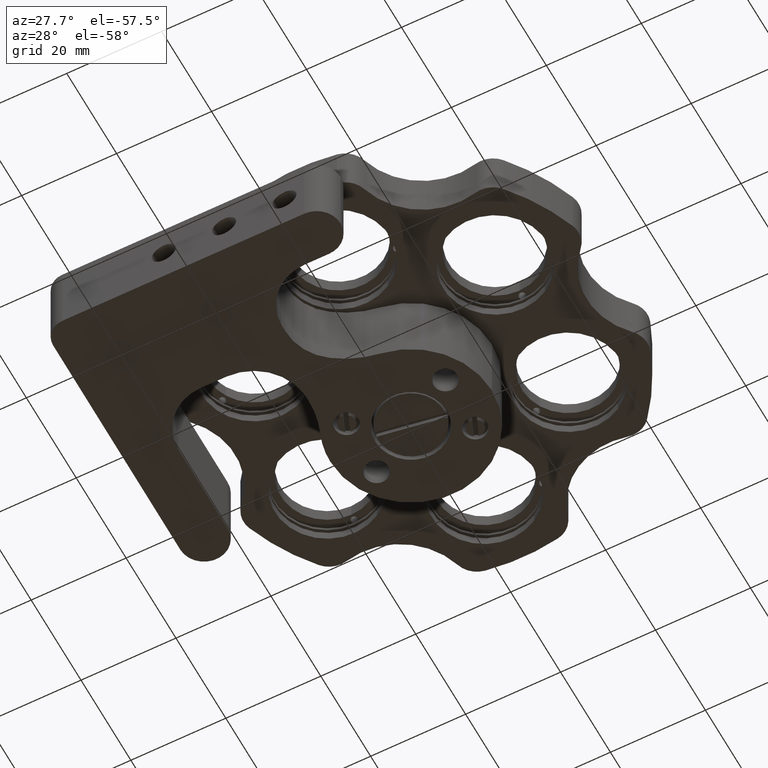
[diagram: clean part render]
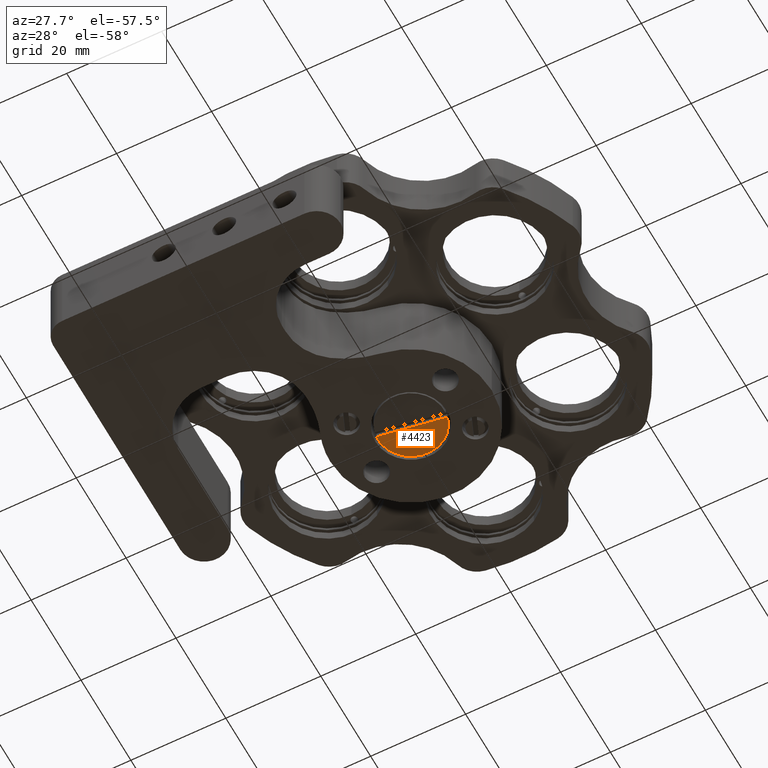
[diagram: same view with one face highlighted and labeled with its STEP entity id]
A machine part, auxiliary view. The second image highlights one B-rep face of the part: STEP entity #4423.
In plain terms, the highlighted planar face has unit normal (0, 0, 1).
Its self-contained STEP definition (entity closure, byte-faithful):
#75 = FACE_OUTER_BOUND ( 'NONE', #2316, .T. ) ;
#404 = DIRECTION ( 'NONE',  ( 1.923004988724427500E-030, 2.449212707644754500E-016, 1.000000000000000000 ) ) ;
#2316 = EDGE_LOOP ( 'NONE', ( #4107, #13499, #11055 ) ) ;
#2749 = CARTESIAN_POINT ( 'NONE',  ( -6.968326962410020400, -0.6651461079714635600, -15.60000000000000300 ) ) ;
#3430 = CARTESIAN_POINT ( 'NONE',  ( 1.431146867680866800E-014, 1.950962720369265000E-014, -15.60000000000000300 ) ) ;
#3459 = AXIS2_PLACEMENT_3D ( 'NONE', #7595, #6535, #12548 ) ;
#3852 = CIRCLE ( 'NONE', #6196, 7.000000000000040000 ) ;
#4107 = ORIENTED_EDGE ( 'NONE', *, *, #6545, .F. ) ;
#4423 = ADVANCED_FACE ( 'NONE', ( #75 ), #8971, .F. ) ;
#5355 = DIRECTION ( 'NONE',  ( 0.1658835395745250600, -0.9861453499856027700, 2.478176394252567300E-016 ) ) ;
#5410 = CARTESIAN_POINT ( 'NONE',  ( 1.431146867680866800E-014, 1.950962720369265000E-014, -15.60000000000000300 ) ) ;
#5730 = EDGE_CURVE ( 'NONE', #11400, #13658, #12675, .T. ) ;
#6158 = CARTESIAN_POINT ( 'NONE',  ( -0.08294176978724893100, 0.4930726749928248700, -15.60000000000000300 ) ) ;
#6196 = AXIS2_PLACEMENT_3D ( 'NONE', #3430, #11868, #10759 ) ;
#6333 = AXIS2_PLACEMENT_3D ( 'NONE', #5410, #404, #5355 ) ;
#6535 = DIRECTION ( 'NONE',  ( 1.947500359764372900E-030, 2.449212707644754000E-016, 1.000000000000000000 ) ) ;
#6545 = EDGE_CURVE ( 'NONE', #11400, #10352, #3852, .T. ) ;
#7595 = CARTESIAN_POINT ( 'NONE',  ( 1.431146867680866800E-014, 1.950962720369265000E-014, -15.60000000000000300 ) ) ;
#8971 = PLANE ( 'NONE',  #3459 ) ;
#9237 = EDGE_CURVE ( 'NONE', #10352, #13658, #12280, .T. ) ;
#10352 = VERTEX_POINT ( 'NONE', #13208 ) ;
#10759 = DIRECTION ( 'NONE',  ( 0.1658835395745250600, -0.9861453499856027700, 2.478176394252567300E-016 ) ) ;
#11055 = ORIENTED_EDGE ( 'NONE', *, *, #9237, .F. ) ;
#11400 = VERTEX_POINT ( 'NONE', #11498 ) ;
#11498 = CARTESIAN_POINT ( 'NONE',  ( 6.802443422835548100, 1.651291457957113600, -15.60000000000000300 ) ) ;
#11868 = DIRECTION ( 'NONE',  ( 1.923004988724427500E-030, 2.449212707644754500E-016, 1.000000000000000000 ) ) ;
#12280 = CIRCLE ( 'NONE', #6333, 7.000000000000040000 ) ;
#12548 = DIRECTION ( 'NONE',  ( 0.1658835395745250900, -0.9861453499856027700, 2.415279722769518200E-016 ) ) ;
#12675 = LINE ( 'NONE', #6158, #15507 ) ;
#13208 = CARTESIAN_POINT ( 'NONE',  ( -1.161184777021660800, 6.903017449899237200, -15.60000000000000500 ) ) ;
#13499 = ORIENTED_EDGE ( 'NONE', *, *, #5730, .T. ) ;
#13658 = VERTEX_POINT ( 'NONE', #2749 ) ;
#14591 = DIRECTION ( 'NONE',  ( -0.9861453499856046600, -0.1658835395745146000, 4.062840731149643300E-017 ) ) ;
#15507 = VECTOR ( 'NONE', #14591, 999.9999999999998900 ) ;